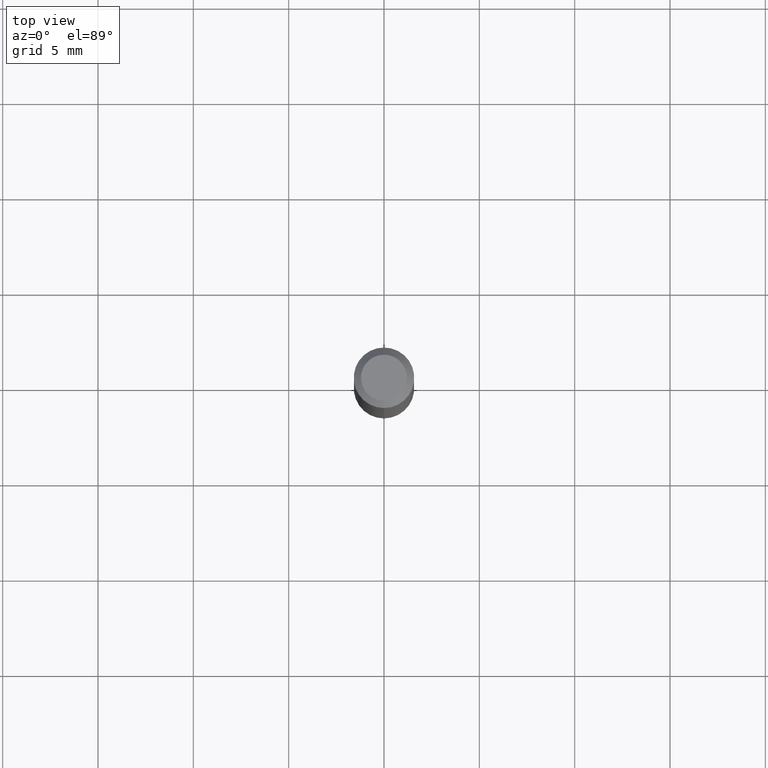
[diagram: clean part render]
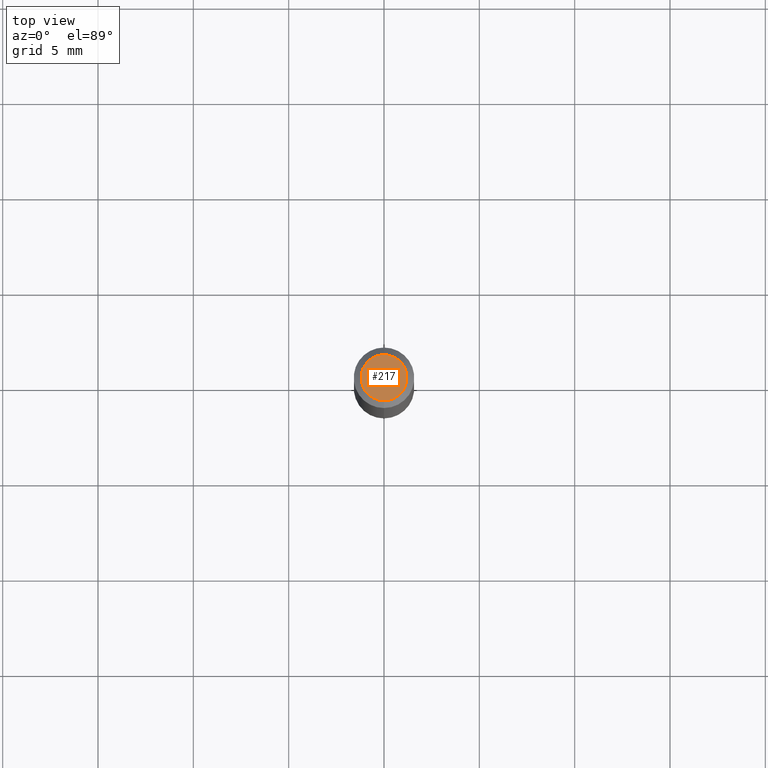
[diagram: same view with one face highlighted and labeled with its STEP entity id]
A machine part, top view. The second image highlights one B-rep face of the part: STEP entity #217.
In plain terms, the highlighted planar face has unit normal (0, -0, -1).
Its self-contained STEP definition (entity closure, byte-faithful):
#3 = EDGE_CURVE ( 'NONE', #342, #193, #148, .T. ) ;
#14 = DIRECTION ( 'NONE',  ( -6.982962677686266711E-15, -1.000000000000000000, 3.491464944699181735E-15 ) ) ;
#25 = AXIS2_PLACEMENT_3D ( 'NONE', #202, #354, #119 ) ;
#36 = DIRECTION ( 'NONE',  ( 2.445480254154679867E-29, -3.491464944699181340E-15, -1.000000000000000000 ) ) ;
#55 = ORIENTED_EDGE ( 'NONE', *, *, #3, .T. ) ;
#92 = ORIENTED_EDGE ( 'NONE', *, *, #195, .T. ) ;
#119 = DIRECTION ( 'NONE',  ( -6.982962677686266711E-15, -1.000000000000000000, 3.491464944699181735E-15 ) ) ;
#122 = AXIS2_PLACEMENT_3D ( 'NONE', #194, #36, #184 ) ;
#148 = CIRCLE ( 'NONE', #377, 0.04749999999999999362 ) ;
#171 = EDGE_LOOP ( 'NONE', ( #55, #92 ) ) ;
#184 = DIRECTION ( 'NONE',  ( 6.982962677686265922E-15, 1.000000000000000000, -3.491464944699181340E-15 ) ) ;
#193 = VERTEX_POINT ( 'NONE', #487 ) ;
#194 = CARTESIAN_POINT ( 'NONE',  ( 3.316907271900976096E-16, 0.04749999999999999362, -1.702751340300457855E-16 ) ) ;
#195 = EDGE_CURVE ( 'NONE', #193, #342, #488, .T. ) ;
#202 = CARTESIAN_POINT ( 'NONE',  ( 2.166964095620187845E-46, -3.093821413370978158E-32, -8.861098313669413045E-18 ) ) ;
#217 = ADVANCED_FACE ( 'NONE', ( #349 ), #311, .F. ) ;
#250 = DIRECTION ( 'NONE',  ( -2.445480254154680147E-29, 3.491464944699181340E-15, 1.000000000000000000 ) ) ;
#311 = PLANE ( 'NONE',  #122 ) ;
#342 = VERTEX_POINT ( 'NONE', #469 ) ;
#349 = FACE_OUTER_BOUND ( 'NONE', #171, .T. ) ;
#354 = DIRECTION ( 'NONE',  ( -2.445480254154680147E-29, 3.491464944699181340E-15, 1.000000000000000000 ) ) ;
#377 = AXIS2_PLACEMENT_3D ( 'NONE', #438, #250, #14 ) ;
#438 = CARTESIAN_POINT ( 'NONE',  ( 2.166964095620187845E-46, -3.093821413370978158E-32, -8.861098313669413045E-18 ) ) ;
#469 = CARTESIAN_POINT ( 'NONE',  ( 3.840629472727447874E-16, 0.04749999999999999362, -1.747056831868805383E-16 ) ) ;
#487 = CARTESIAN_POINT ( 'NONE',  ( -3.773273898774340269E-16, -0.04749999999999999362, 1.569834865595416752E-16 ) ) ;
#488 = CIRCLE ( 'NONE', #25, 0.04749999999999999362 ) ;